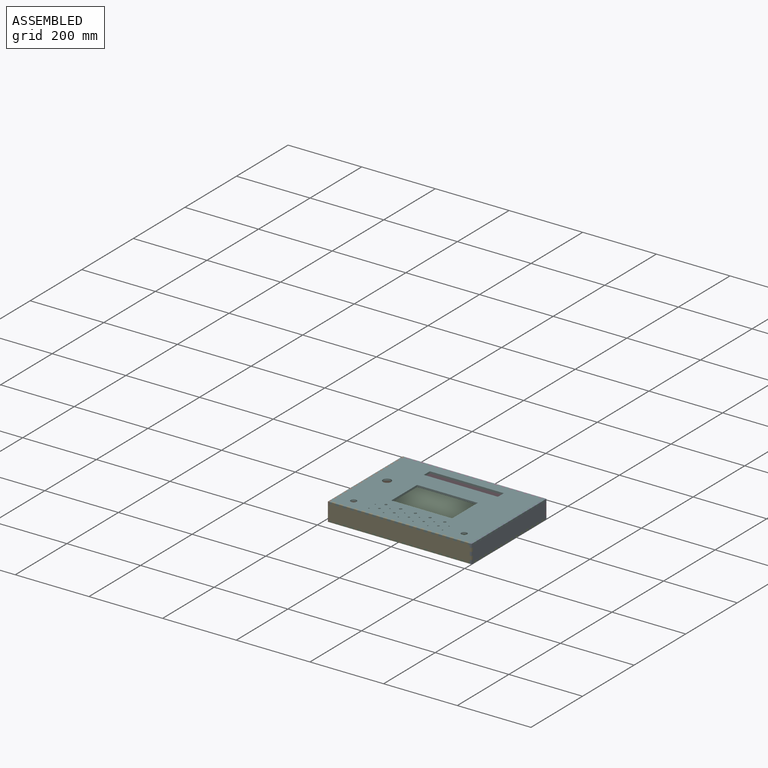
[diagram: assembled view]
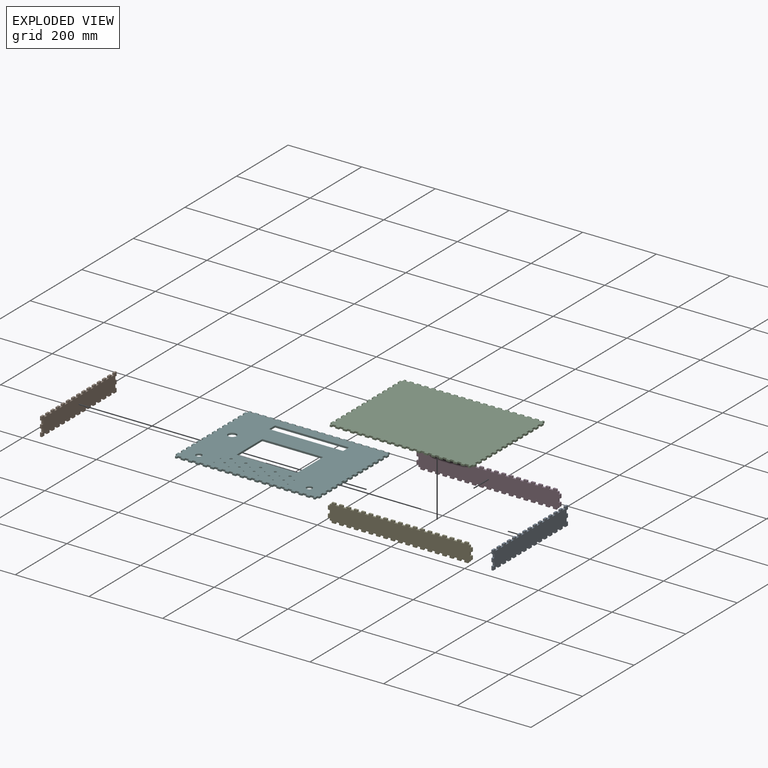
[diagram: exploded view]
GUIDED TOUR — MATED ASSEMBLY (Onshape document 58454a1c1316291098a44c90, AutoMate assembly 58454a1c1316291098a44c90_6ab6e86a1b761d5ac9e8e9ca_1e083ecb8c683d92ed4c0524_default)

This assembly has 6 components, labeled P0..P5 below (a component is one placed occurrence of a part; the same part can appear more than once), held together by 5 mates. A mate is a constraint between two components; its type names the relative motion it leaves free:
  FASTENED — locks the two components together rigidly (no relative motion).
Axis/direction vectors are unit vectors and 'through' points are millimeter coordinates, both in the assembly's world frame.

MATES
  1. FASTENED "Fastened 1": P1 <-> P2, direction (0.000, -1.000, 0.000) through (-176.02, -186.02, -19.27) mm
  2. FASTENED "Fastened 6": P3 <-> P1, direction (-1.000, 0.000, 0.000) through (-181.02, 98.98, 10.73) mm
  3. FASTENED "Fastened 5": P4 <-> P0, direction (1.000, 0.000, 0.000) through (208.98, -181.02, 10.73) mm
  4. FASTENED "Fastened 2": P0 <-> P2, direction (0.000, -1.000, 0.000) through (203.98, -186.02, -19.27) mm
  5. FASTENED "Fastened 3": P0 <-> P5, direction (1.000, 0.000, 0.000) through (208.98, -176.02, 25.73) mm

ASSEMBLY ORDER
  1. P4 — the base component [order verified]
  2. P0 [order verified]
  3. P5 [order verified]
  4. P3 [order verified]
  5. P2 [order verified]
  6. P1 [order verified]
Order-tag legend:
  [order verified] — this step's position reverses a verified removal order: the component was checked to insert without passing through the ones already placed.

Of the 6 components, 6 carry the full construction recipe — the FeatureScript program that regenerates the part's solid from scratch; the rest are supplied as boundary geometry only.
Each toured component is shown spotlighted twice — in the assembled view, then in the exploded view, where a leader line traces a displaced component back to its assembled socket (saturated green if recipe-attached, orange if geometry-only; every other component desaturated gray) — followed by its recipe or geometry summary and the mates that hold it.
NOTE — document 2 of 2 of this assembly tour. The two overview renders and the header above are repeated from document 1; the component sections below continue where the previous document stopped.
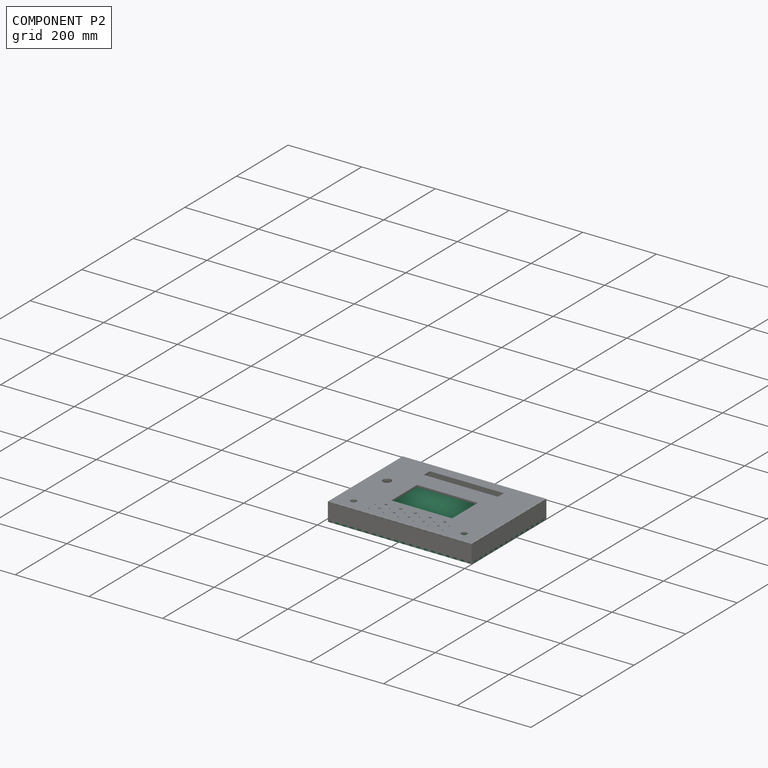
[diagram: component P2 — assembled]
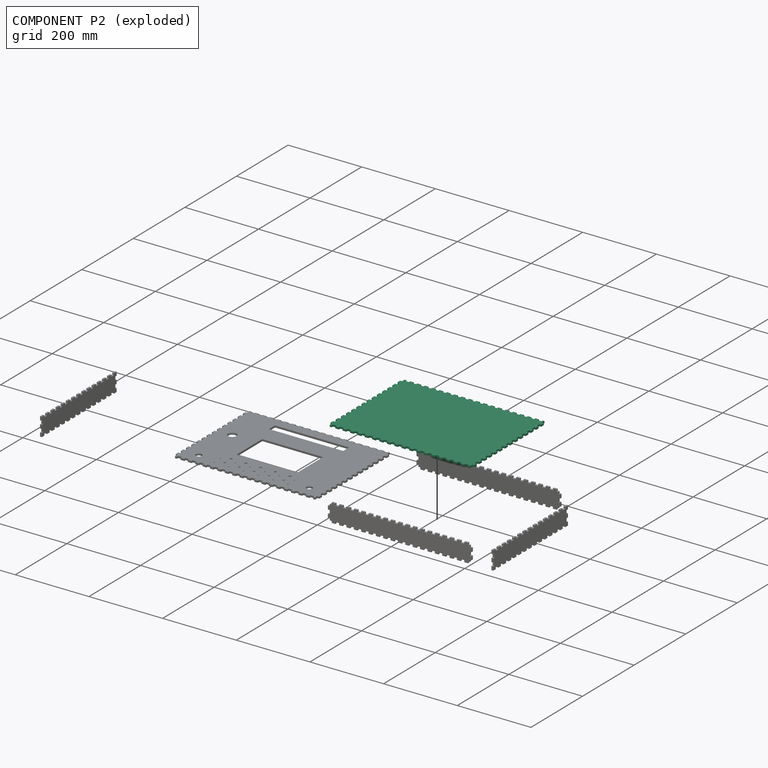
[diagram: component P2 — exploded]
COMPONENT P2 — recipe-attached (CADFS 00366136, mesh-verified: the recipe's output STEP matches this component's geometry to below the mesh-comparison resolution (tessellation chordal tolerance ~0.729 mm)).
Held by: FASTENED mate "Fastened 1" to P1; FASTENED mate "Fastened 2" to P0.
Construction recipe (FeatureScript — the CAD program that rebuilds this solid; sketch coordinates are in the units given by the * unit suffixes, e.g. mm):

FeatureScript 1511;
import(path : "onshape/std/geometry.fs", version : "1511.0");
import(path : "onshape/std/common.fs", version : "1511.0");
const mm = millimeter;
const VERTEX = EntityType.VERTEX;
const EDGE = EntityType.EDGE;
const FACE = EntityType.FACE;
const BODY = EntityType.BODY;
function v(x, y){return vector(x, y);}
function OD(order){return orderDisambiguation(order);}
function OSD(set){return originalSetDisambiguation(set);}
function TD(topology){return topologyDisambiguation(topology);}
function TDD(query){return trueDependencyDisambiguation(query);}
function sQuery(a, b, c) {return sketchEntityQuery(a, b, c);}

annotation { "Feature Type Name" : "Feature", "Feature Type Description" : "" }
export const myFeature = defineFeature(function(context is Context, id is Id, definition is map)
    precondition{}
    {
        {
            var Q0;
            Q0=qCreatedBy(makeId("Top.planeOp"),FACE);
            var sketch = newSketch(context, id + "F0", { "sketchPlane" : qUnion([Q0])});
            skLineSegment(sketch, "E0", {"start": v(-189.05, -126.62) * mm, "end": v(-184.05, -126.62) * mm});
            skLineSegment(sketch, "E1", {"start": v(-184.05, -126.62) * mm, "end": v(-184.05, -136.62) * mm});
            skLineSegment(sketch, "E2", {"start": v(-184.05, -136.62) * mm, "end": v(-179.05, -136.62) * mm});
            skLineSegment(sketch, "E3", {"start": v(-179.05, -136.62) * mm, "end": v(-179.05, -131.62) * mm});
            skLineSegment(sketch, "E4", {"start": v(-179.05, -131.62) * mm, "end": v(-169.05, -131.62) * mm});
            skLineSegment(sketch, "E5", {"start": v(-169.05, -131.62) * mm, "end": v(-169.05, -136.62) * mm});
            skLineSegment(sketch, "E6", {"start": v(-169.05, -136.62) * mm, "end": v(-159.05, -136.62) * mm});
            skLineSegment(sketch, "E7", {"start": v(-159.05, -136.62) * mm, "end": v(-159.05, -131.62) * mm});
            skLineSegment(sketch, "E8", {"start": v(-159.05, -131.62) * mm, "end": v(-149.05, -131.62) * mm});
            skLineSegment(sketch, "E9", {"start": v(-149.05, -131.62) * mm, "end": v(-149.05, -136.62) * mm});
            skLineSegment(sketch, "E10.1.0.0", {"start": v(-149.05, -136.62) * mm, "end": v(-139.05, -136.62) * mm});
            skLineSegment(sketch, "E10.1.0.1", {"start": v(-139.05, -136.62) * mm, "end": v(-139.05, -131.62) * mm});
            skLineSegment(sketch, "E10.1.0.2", {"start": v(-139.05, -131.62) * mm, "end": v(-129.05, -131.62) * mm});
            skLineSegment(sketch, "E10.1.0.3", {"start": v(-129.05, -131.62) * mm, "end": v(-129.05, -136.62) * mm});
            skLineSegment(sketch, "E10.2.0.0", {"start": v(-129.05, -136.62) * mm, "end": v(-119.05, -136.62) * mm});
            skLineSegment(sketch, "E10.2.0.1", {"start": v(-119.05, -136.62) * mm, "end": v(-119.05, -131.62) * mm});
            skLineSegment(sketch, "E10.2.0.2", {"start": v(-119.05, -131.62) * mm, "end": v(-109.05, -131.62) * mm});
            skLineSegment(sketch, "E10.2.0.3", {"start": v(-109.05, -131.62) * mm, "end": v(-109.05, -136.62) * mm});
            skLineSegment(sketch, "E10.3.0.0", {"start": v(-109.05, -136.62) * mm, "end": v(-99.05, -136.62) * mm});
            skLineSegment(sketch, "E10.3.0.1", {"start": v(-99.05, -136.62) * mm, "end": v(-99.05, -131.62) * mm});
            skLineSegment(sketch, "E10.3.0.2", {"start": v(-99.05, -131.62) * mm, "end": v(-89.05, -131.62) * mm});
            skLineSegment(sketch, "E10.3.0.3", {"start": v(-89.05, -131.62) * mm, "end": v(-89.05, -136.62) * mm});
            skLineSegment(sketch, "E10.4.0.0", {"start": v(-89.05, -136.62) * mm, "end": v(-79.05, -136.62) * mm});
            skLineSegment(sketch, "E10.4.0.1", {"start": v(-79.05, -136.62) * mm, "end": v(-79.05, -131.62) * mm});
            skLineSegment(sketch, "E10.4.0.2", {"start": v(-79.05, -131.62) * mm, "end": v(-69.05, -131.62) * mm});
            skLineSegment(sketch, "E10.4.0.3", {"start": v(-69.05, -131.62) * mm, "end": v(-69.05, -136.62) * mm});
            skLineSegment(sketch, "E10.5.0.0", {"start": v(-69.05, -136.62) * mm, "end": v(-59.05, -136.62) * mm});
            skLineSegment(sketch, "E10.5.0.1", {"start": v(-59.05, -136.62) * mm, "end": v(-59.05, -131.62) * mm});
            skLineSegment(sketch, "E10.5.0.2", {"start": v(-59.05, -131.62) * mm, "end": v(-49.05, -131.62) * mm});
            skLineSegment(sketch, "E10.5.0.3", {"start": v(-49.05, -131.62) * mm, "end": v(-49.05, -136.62) * mm});
            skLineSegment(sketch, "E10.6.0.0", {"start": v(-49.05, -136.62) * mm, "end": v(-39.05, -136.62) * mm});
            skLineSegment(sketch, "E10.6.0.1", {"start": v(-39.05, -136.62) * mm, "end": v(-39.05, -131.62) * mm});
            skLineSegment(sketch, "E10.6.0.2", {"start": v(-39.05, -131.62) * mm, "end": v(-29.05, -131.62) * mm});
            skLineSegment(sketch, "E10.6.0.3", {"start": v(-29.05, -131.62) * mm, "end": v(-29.05, -136.62) * mm});
            skLineSegment(sketch, "E10.7.0.0", {"start": v(-29.05, -136.62) * mm, "end": v(-19.05, -136.62) * mm});
            skLineSegment(sketch, "E10.7.0.1", {"start": v(-19.05, -136.62) * mm, "end": v(-19.05, -131.62) * mm});
            skLineSegment(sketch, "E10.7.0.2", {"start": v(-19.05, -131.62) * mm, "end": v(-9.05, -131.62) * mm});
            skLineSegment(sketch, "E10.7.0.3", {"start": v(-9.05, -131.62) * mm, "end": v(-9.05, -136.62) * mm});
            skLineSegment(sketch, "E10.8.0.0", {"start": v(-9.05, -136.62) * mm, "end": v(0.95, -136.62) * mm});
            skLineSegment(sketch, "E10.8.0.1", {"start": v(0.95, -136.62) * mm, "end": v(0.95, -131.62) * mm});
            skLineSegment(sketch, "E10.8.0.2", {"start": v(0.95, -131.62) * mm, "end": v(10.95, -131.62) * mm});
            skLineSegment(sketch, "E10.8.0.3", {"start": v(10.95, -131.62) * mm, "end": v(10.95, -136.62) * mm});
            skLineSegment(sketch, "E10.9.0.0", {"start": v(10.95, -136.62) * mm, "end": v(20.95, -136.62) * mm});
            skLineSegment(sketch, "E10.9.0.1", {"start": v(20.95, -136.62) * mm, "end": v(20.95, -131.62) * mm});
            skLineSegment(sketch, "E10.9.0.2", {"start": v(20.95, -131.62) * mm, "end": v(30.95, -131.62) * mm});
            skLineSegment(sketch, "E10.9.0.3", {"start": v(30.95, -131.62) * mm, "end": v(30.95, -136.62) * mm});
            skLineSegment(sketch, "E10.10.0.0", {"start": v(30.95, -136.62) * mm, "end": v(40.95, -136.62) * mm});
            skLineSegment(sketch, "E10.10.0.1", {"start": v(40.95, -136.62) * mm, "end": v(40.95, -131.62) * mm});
            skLineSegment(sketch, "E10.10.0.2", {"start": v(40.95, -131.62) * mm, "end": v(50.95, -131.62) * mm});
            skLineSegment(sketch, "E10.10.0.3", {"start": v(50.95, -131.62) * mm, "end": v(50.95, -136.62) * mm});
            skLineSegment(sketch, "E10.11.0.0", {"start": v(50.95, -136.62) * mm, "end": v(60.95, -136.62) * mm});
            skLineSegment(sketch, "E10.11.0.1", {"start": v(60.95, -136.62) * mm, "end": v(60.95, -131.62) * mm});
            skLineSegment(sketch, "E10.11.0.2", {"start": v(60.95, -131.62) * mm, "end": v(70.95, -131.62) * mm});
            skLineSegment(sketch, "E10.11.0.3", {"start": v(70.95, -131.62) * mm, "end": v(70.95, -136.62) * mm});
            skLineSegment(sketch, "E10.12.0.0", {"start": v(70.95, -136.62) * mm, "end": v(80.95, -136.62) * mm});
            skLineSegment(sketch, "E10.12.0.1", {"start": v(80.95, -136.62) * mm, "end": v(80.95, -131.62) * mm});
            skLineSegment(sketch, "E10.12.0.2", {"start": v(80.95, -131.62) * mm, "end": v(90.95, -131.62) * mm});
            skLineSegment(sketch, "E10.12.0.3", {"start": v(90.95, -131.62) * mm, "end": v(90.95, -136.62) * mm});
            skLineSegment(sketch, "E10.13.0.0", {"start": v(90.95, -136.62) * mm, "end": v(100.95, -136.62) * mm});
            skLineSegment(sketch, "E10.13.0.1", {"start": v(100.95, -136.62) * mm, "end": v(100.95, -131.62) * mm});
            skLineSegment(sketch, "E10.13.0.2", {"start": v(100.95, -131.62) * mm, "end": v(110.95, -131.62) * mm});
            skLineSegment(sketch, "E10.13.0.3", {"start": v(110.95, -131.62) * mm, "end": v(110.95, -136.62) * mm});
            skLineSegment(sketch, "E10.14.0.0", {"start": v(110.95, -136.62) * mm, "end": v(120.95, -136.62) * mm});
            skLineSegment(sketch, "E10.14.0.1", {"start": v(120.95, -136.62) * mm, "end": v(120.95, -131.62) * mm});
            skLineSegment(sketch, "E10.14.0.2", {"start": v(120.95, -131.62) * mm, "end": v(130.95, -131.62) * mm});
            skLineSegment(sketch, "E10.14.0.3", {"start": v(130.95, -131.62) * mm, "end": v(130.95, -136.62) * mm});
            skLineSegment(sketch, "E10.15.0.0", {"start": v(130.95, -136.62) * mm, "end": v(140.95, -136.62) * mm});
            skLineSegment(sketch, "E10.15.0.1", {"start": v(140.95, -136.62) * mm, "end": v(140.95, -131.62) * mm});
            skLineSegment(sketch, "E10.15.0.2", {"start": v(140.95, -131.62) * mm, "end": v(150.95, -131.62) * mm});
            skLineSegment(sketch, "E10.15.0.3", {"start": v(150.95, -131.62) * mm, "end": v(150.95, -136.62) * mm});
            skLineSegment(sketch, "E10.16.0.0", {"start": v(150.95, -136.62) * mm, "end": v(160.95, -136.62) * mm});
            skLineSegment(sketch, "E10.16.0.1", {"start": v(160.95, -136.62) * mm, "end": v(160.95, -131.62) * mm});
            skLineSegment(sketch, "E10.16.0.2", {"start": v(160.95, -131.62) * mm, "end": v(170.95, -131.62) * mm});
            skLineSegment(sketch, "E10.16.0.3", {"start": v(170.95, -131.62) * mm, "end": v(170.95, -136.62) * mm});
            skLineSegment(sketch, "E10.17.0.0", {"start": v(170.95, -136.62) * mm, "end": v(180.95, -136.62) * mm});
            skLineSegment(sketch, "E10.17.0.1", {"start": v(180.95, -136.62) * mm, "end": v(180.95, -131.62) * mm});
            skLineSegment(sketch, "E10.17.0.2", {"start": v(180.95, -131.62) * mm, "end": v(190.95, -131.62) * mm});
            skLineSegment(sketch, "E10.17.0.3", {"start": v(190.95, -131.62) * mm, "end": v(190.95, -136.62) * mm});
            skLineSegment(sketch, "E10.direction1", {"start": v(-169.05, -136.62) * mm, "end": v(-149.05, -136.62) * mm, "construction": true});
            skLineSegment(sketch, "E11", {"start": v(190.95, -136.62) * mm, "end": v(195.95, -136.62) * mm});
            skLineSegment(sketch, "E12", {"start": v(195.95, -136.62) * mm, "end": v(195.95, -126.62) * mm});
            skLineSegment(sketch, "E13", {"start": v(195.95, -126.62) * mm, "end": v(200.95, -126.62) * mm});
            skLineSegment(sketch, "E14", {"start": v(200.95, 143.38) * mm, "end": v(195.95, 143.38) * mm});
            skLineSegment(sketch, "E15", {"start": v(195.95, 143.38) * mm, "end": v(195.95, 153.38) * mm});
            skLineSegment(sketch, "E16", {"start": v(195.95, 153.38) * mm, "end": v(190.95, 153.38) * mm});
            skLineSegment(sketch, "E17", {"start": v(190.95, 153.38) * mm, "end": v(190.95, 148.38) * mm});
            skLineSegment(sketch, "E18", {"start": v(190.95, 148.38) * mm, "end": v(180.95, 148.38) * mm});
            skLineSegment(sketch, "E19", {"start": v(180.95, 148.38) * mm, "end": v(180.95, 153.38) * mm});
            skLineSegment(sketch, "E20", {"start": v(180.95, 153.38) * mm, "end": v(170.95, 153.38) * mm});
            skLineSegment(sketch, "E21", {"start": v(170.95, 153.38) * mm, "end": v(170.95, 148.38) * mm});
            skLineSegment(sketch, "E22", {"start": v(170.95, 148.38) * mm, "end": v(160.95, 148.38) * mm});
            skLineSegment(sketch, "E23", {"start": v(160.95, 148.38) * mm, "end": v(160.95, 153.38) * mm});
            skLineSegment(sketch, "E24.1.0.0", {"start": v(160.95, 153.38) * mm, "end": v(150.95, 153.38) * mm});
            skLineSegment(sketch, "E24.1.0.1", {"start": v(150.95, 153.38) * mm, "end": v(150.95, 148.38) * mm});
            skLineSegment(sketch, "E24.1.0.2", {"start": v(150.95, 148.38) * mm, "end": v(140.95, 148.38) * mm});
            skLineSegment(sketch, "E24.1.0.3", {"start": v(140.95, 148.38) * mm, "end": v(140.95, 153.38) * mm});
            skLineSegment(sketch, "E24.2.0.0", {"start": v(140.95, 153.38) * mm, "end": v(130.95, 153.38) * mm});
            skLineSegment(sketch, "E24.2.0.1", {"start": v(130.95, 153.38) * mm, "end": v(130.95, 148.38) * mm});
            skLineSegment(sketch, "E24.2.0.2", {"start": v(130.95, 148.38) * mm, "end": v(120.95, 148.38) * mm});
            skLineSegment(sketch, "E24.2.0.3", {"start": v(120.95, 148.38) * mm, "end": v(120.95, 153.38) * mm});
            skLineSegment(sketch, "E24.3.0.0", {"start": v(120.95, 153.38) * mm, "end": v(110.95, 153.38) * mm});
            skLineSegment(sketch, "E24.3.0.1", {"start": v(110.95, 153.38) * mm, "end": v(110.95, 148.38) * mm});
            skLineSegment(sketch, "E24.3.0.2", {"start": v(110.95, 148.38) * mm, "end": v(100.95, 148.38) * mm});
            skLineSegment(sketch, "E24.3.0.3", {"start": v(100.95, 148.38) * mm, "end": v(100.95, 153.38) * mm});
            skLineSegment(sketch, "E24.4.0.0", {"start": v(100.95, 153.38) * mm, "end": v(90.95, 153.38) * mm});
            skLineSegment(sketch, "E24.4.0.1", {"start": v(90.95, 153.38) * mm, "end": v(90.95, 148.38) * mm});
            skLineSegment(sketch, "E24.4.0.2", {"start": v(90.95, 148.38) * mm, "end": v(80.95, 148.38) * mm});
            skLineSegment(sketch, "E24.4.0.3", {"start": v(80.95, 148.38) * mm, "end": v(80.95, 153.38) * mm});
            skLineSegment(sketch, "E24.5.0.0", {"start": v(80.95, 153.38) * mm, "end": v(70.95, 153.38) * mm});
            skLineSegment(sketch, "E24.5.0.1", {"start": v(70.95, 153.38) * mm, "end": v(70.95, 148.38) * mm});
            skLineSegment(sketch, "E24.5.0.2", {"start": v(70.95, 148.38) * mm, "end": v(60.95, 148.38) * mm});
            skLineSegment(sketch, "E24.5.0.3", {"start": v(60.95, 148.38) * mm, "end": v(60.95, 153.38) * mm});
            skLineSegment(sketch, "E24.6.0.0", {"start": v(60.95, 153.38) * mm, "end": v(50.95, 153.38) * mm});
            skLineSegment(sketch, "E24.6.0.1", {"start": v(50.95, 153.38) * mm, "end": v(50.95, 148.38) * mm});
            skLineSegment(sketch, "E24.6.0.2", {"start": v(50.95, 148.38) * mm, "end": v(40.95, 148.38) * mm});
            skLineSegment(sketch, "E24.6.0.3", {"start": v(40.95, 148.38) * mm, "end": v(40.95, 153.38) * mm});
            skLineSegment(sketch, "E24.7.0.0", {"start": v(40.95, 153.38) * mm, "end": v(30.95, 153.38) * mm});
            skLineSegment(sketch, "E24.7.0.1", {"start": v(30.95, 153.38) * mm, "end": v(30.95, 148.38) * mm});
            skLineSegment(sketch, "E24.7.0.2", {"start": v(30.95, 148.38) * mm, "end": v(20.95, 148.38) * mm});
            skLineSegment(sketch, "E24.7.0.3", {"start": v(20.95, 148.38) * mm, "end": v(20.95, 153.38) * mm});
            skLineSegment(sketch, "E24.8.0.0", {"start": v(20.95, 153.38) * mm, "end": v(10.95, 153.38) * mm});
            skLineSegment(sketch, "E24.8.0.1", {"start": v(10.95, 153.38) * mm, "end": v(10.95, 148.38) * mm});
            skLineSegment(sketch, "E24.8.0.2", {"start": v(10.95, 148.38) * mm, "end": v(0.95, 148.38) * mm});
            skLineSegment(sketch, "E24.8.0.3", {"start": v(0.95, 148.38) * mm, "end": v(0.95, 153.38) * mm});
            skLineSegment(sketch, "E24.9.0.0", {"start": v(0.95, 153.38) * mm, "end": v(-9.05, 153.38) * mm});
            skLineSegment(sketch, "E24.9.0.1", {"start": v(-9.05, 153.38) * mm, "end": v(-9.05, 148.38) * mm});
            skLineSegment(sketch, "E24.9.0.2", {"start": v(-9.05, 148.38) * mm, "end": v(-19.05, 148.38) * mm});
            skLineSegment(sketch, "E24.9.0.3", {"start": v(-19.05, 148.38) * mm, "end": v(-19.05, 153.38) * mm});
            skLineSegment(sketch, "E24.10.0.0", {"start": v(-19.05, 153.38) * mm, "end": v(-29.05, 153.38) * mm});
            skLineSegment(sketch, "E24.10.0.1", {"start": v(-29.05, 153.38) * mm, "end": v(-29.05, 148.38) * mm});
            skLineSegment(sketch, "E24.10.0.2", {"start": v(-29.05, 148.38) * mm, "end": v(-39.05, 148.38) * mm});
            skLineSegment(sketch, "E24.10.0.3", {"start": v(-39.05, 148.38) * mm, "end": v(-39.05, 153.38) * mm});
            skLineSegment(sketch, "E24.11.0.0", {"start": v(-39.05, 153.38) * mm, "end": v(-49.05, 153.38) * mm});
            skLineSegment(sketch, "E24.11.0.1", {"start": v(-49.05, 153.38) * mm, "end": v(-49.05, 148.38) * mm});
            skLineSegment(sketch, "E24.11.0.2", {"start": v(-49.05, 148.38) * mm, "end": v(-59.05, 148.38) * mm});
            skLineSegment(sketch, "E24.11.0.3", {"start": v(-59.05, 148.38) * mm, "end": v(-59.05, 153.38) * mm});
            skLineSegment(sketch, "E24.12.0.0", {"start": v(-59.05, 153.38) * mm, "end": v(-69.05, 153.38) * mm});
            skLineSegment(sketch, "E24.12.0.1", {"start": v(-69.05, 153.38) * mm, "end": v(-69.05, 148.38) * mm});
            skLineSegment(sketch, "E24.12.0.2", {"start": v(-69.05, 148.38) * mm, "end": v(-79.05, 148.38) * mm});
            skLineSegment(sketch, "E24.12.0.3", {"start": v(-79.05, 148.38) * mm, "end": v(-79.05, 153.38) * mm});
            skLineSegment(sketch, "E24.13.0.0", {"start": v(-79.05, 153.38) * mm, "end": v(-89.05, 153.38) * mm});
            skLineSegment(sketch, "E24.13.0.1", {"start": v(-89.05, 153.38) * mm, "end": v(-89.05, 148.38) * mm});
            skLineSegment(sketch, "E24.13.0.2", {"start": v(-89.05, 148.38) * mm, "end": v(-99.05, 148.38) * mm});
            skLineSegment(sketch, "E24.13.0.3", {"start": v(-99.05, 148.38) * mm, "end": v(-99.05, 153.38) * mm});
            skLineSegment(sketch, "E24.14.0.0", {"start": v(-99.05, 153.38) * mm, "end": v(-109.05, 153.38) * mm});
            skLineSegment(sketch, "E24.14.0.1", {"start": v(-109.05, 153.38) * mm, "end": v(-109.05, 148.38) * mm});
            skLineSegment(sketch, "E24.14.0.2", {"start": v(-109.05, 148.38) * mm, "end": v(-119.05, 148.38) * mm});
            skLineSegment(sketch, "E24.14.0.3", {"start": v(-119.05, 148.38) * mm, "end": v(-119.05, 153.38) * mm});
            skLineSegment(sketch, "E24.15.0.0", {"start": v(-119.05, 153.38) * mm, "end": v(-129.05, 153.38) * mm});
            skLineSegment(sketch, "E24.15.0.1", {"start": v(-129.05, 153.38) * mm, "end": v(-129.05, 148.38) * mm});
            skLineSegment(sketch, "E24.15.0.2", {"start": v(-129.05, 148.38) * mm, "end": v(-139.05, 148.38) * mm});
            skLineSegment(sketch, "E24.15.0.3", {"start": v(-139.05, 148.38) * mm, "end": v(-139.05, 153.38) * mm});
            skLineSegment(sketch, "E24.16.0.0", {"start": v(-139.05, 153.38) * mm, "end": v(-149.05, 153.38) * mm});
            skLineSegment(sketch, "E24.16.0.1", {"start": v(-149.05, 153.38) * mm, "end": v(-149.05, 148.38) * mm});
            skLineSegment(sketch, "E24.16.0.2", {"start": v(-149.05, 148.38) * mm, "end": v(-159.05, 148.38) * mm});
            skLineSegment(sketch, "E24.16.0.3", {"start": v(-159.05, 148.38) * mm, "end": v(-159.05, 153.38) * mm});
            skLineSegment(sketch, "E24.17.0.0", {"start": v(-159.05, 153.38) * mm, "end": v(-169.05, 153.38) * mm});
            skLineSegment(sketch, "E24.17.0.1", {"start": v(-169.05, 153.38) * mm, "end": v(-169.05, 148.38) * mm});
            skLineSegment(sketch, "E24.17.0.2", {"start": v(-169.05, 148.38) * mm, "end": v(-179.05, 148.38) * mm});
            skLineSegment(sketch, "E24.17.0.3", {"start": v(-179.05, 148.38) * mm, "end": v(-179.05, 153.38) * mm});
            skLineSegment(sketch, "E24.direction1", {"start": v(180.95, 153.38) * mm, "end": v(160.95, 153.38) * mm, "construction": true});
            skLineSegment(sketch, "E25", {"start": v(-179.05, 153.38) * mm, "end": v(-184.05, 153.38) * mm});
            skLineSegment(sketch, "E26", {"start": v(-184.05, 153.38) * mm, "end": v(-184.05, 143.38) * mm});
            skLineSegment(sketch, "E27", {"start": v(-184.05, 143.38) * mm, "end": v(-189.05, 143.38) * mm});
            skLineSegment(sketch, "E28", {"start": v(-189.05, 143.38) * mm, "end": v(-189.05, 133.38) * mm});
            skLineSegment(sketch, "E29", {"start": v(-189.05, 133.38) * mm, "end": v(-184.05, 133.38) * mm});
            skLineSegment(sketch, "E30", {"start": v(-184.05, 133.38) * mm, "end": v(-184.05, 123.38) * mm});
            skLineSegment(sketch, "E31.1.0.0", {"start": v(-184.05, 123.38) * mm, "end": v(-189.05, 123.38) * mm});
            skLineSegment(sketch, "E31.1.0.1", {"start": v(-189.05, 123.38) * mm, "end": v(-189.05, 113.38) * mm});
            skLineSegment(sketch, "E31.1.0.2", {"start": v(-189.05, 113.38) * mm, "end": v(-184.05, 113.38) * mm});
            skLineSegment(sketch, "E31.1.0.3", {"start": v(-184.05, 113.38) * mm, "end": v(-184.05, 103.38) * mm});
            skLineSegment(sketch, "E31.2.0.0", {"start": v(-184.05, 103.38) * mm, "end": v(-189.05, 103.38) * mm});
            skLineSegment(sketch, "E31.2.0.1", {"start": v(-189.05, 103.38) * mm, "end": v(-189.05, 93.38) * mm});
            skLineSegment(sketch, "E31.2.0.2", {"start": v(-189.05, 93.38) * mm, "end": v(-184.05, 93.38) * mm});
            skLineSegment(sketch, "E31.2.0.3", {"start": v(-184.05, 93.38) * mm, "end": v(-184.05, 83.38) * mm});
            skLineSegment(sketch, "E31.3.0.0", {"start": v(-184.05, 83.38) * mm, "end": v(-189.05, 83.38) * mm});
            skLineSegment(sketch, "E31.3.0.1", {"start": v(-189.05, 83.38) * mm, "end": v(-189.05, 73.38) * mm});
            skLineSegment(sketch, "E31.3.0.2", {"start": v(-189.05, 73.38) * mm, "end": v(-184.05, 73.38) * mm});
            skLineSegment(sketch, "E31.3.0.3", {"start": v(-184.05, 73.38) * mm, "end": v(-184.05, 63.38) * mm});
            skLineSegment(sketch, "E31.4.0.0", {"start": v(-184.05, 63.38) * mm, "end": v(-189.05, 63.38) * mm});
            skLineSegment(sketch, "E31.4.0.1", {"start": v(-189.05, 63.38) * mm, "end": v(-189.05, 53.38) * mm});
            skLineSegment(sketch, "E31.4.0.2", {"start": v(-189.05, 53.38) * mm, "end": v(-184.05, 53.38) * mm});
            skLineSegment(sketch, "E31.4.0.3", {"start": v(-184.05, 53.38) * mm, "end": v(-184.05, 43.38) * mm});
            skLineSegment(sketch, "E31.5.0.0", {"start": v(-184.05, 43.38) * mm, "end": v(-189.05, 43.38) * mm});
            skLineSegment(sketch, "E31.5.0.1", {"start": v(-189.05, 43.38) * mm, "end": v(-189.05, 33.38) * mm});
            skLineSegment(sketch, "E31.5.0.2", {"start": v(-189.05, 33.38) * mm, "end": v(-184.05, 33.38) * mm});
            skLineSegment(sketch, "E31.5.0.3", {"start": v(-184.05, 33.38) * mm, "end": v(-184.05, 23.38) * mm});
            skLineSegment(sketch, "E31.6.0.0", {"start": v(-184.05, 23.38) * mm, "end": v(-189.05, 23.38) * mm});
            skLineSegment(sketch, "E31.6.0.1", {"start": v(-189.05, 23.38) * mm, "end": v(-189.05, 13.38) * mm});
            skLineSegment(sketch, "E31.6.0.2", {"start": v(-189.05, 13.38) * mm, "end": v(-184.05, 13.38) * mm});
            skLineSegment(sketch, "E31.6.0.3", {"start": v(-184.05, 13.38) * mm, "end": v(-184.05, 3.38) * mm});
            skLineSegment(sketch, "E31.7.0.0", {"start": v(-184.05, 3.38) * mm, "end": v(-189.05, 3.38) * mm});
            skLineSegment(sketch, "E31.7.0.1", {"start": v(-189.05, 3.38) * mm, "end": v(-189.05, -6.62) * mm});
            skLineSegment(sketch, "E31.7.0.2", {"start": v(-189.05, -6.62) * mm, "end": v(-184.05, -6.62) * mm});
            skLineSegment(sketch, "E31.7.0.3", {"start": v(-184.05, -6.62) * mm, "end": v(-184.05, -16.62) * mm});
            skLineSegment(sketch, "E31.8.0.0", {"start": v(-184.05, -16.62) * mm, "end": v(-189.05, -16.62) * mm});
            skLineSegment(sketch, "E31.8.0.1", {"start": v(-189.05, -16.62) * mm, "end": v(-189.05, -26.62) * mm});
            skLineSegment(sketch, "E31.8.0.2", {"start": v(-189.05, -26.62) * mm, "end": v(-184.05, -26.62) * mm});
            skLineSegment(sketch, "E31.8.0.3", {"start": v(-184.05, -26.62) * mm, "end": v(-184.05, -36.62) * mm});
            skLineSegment(sketch, "E31.9.0.0", {"start": v(-184.05, -36.62) * mm, "end": v(-189.05, -36.62) * mm});
            skLineSegment(sketch, "E31.9.0.1", {"start": v(-189.05, -36.62) * mm, "end": v(-189.05, -46.62) * mm});
            skLineSegment(sketch, "E31.9.0.2", {"start": v(-189.05, -46.62) * mm, "end": v(-184.05, -46.62) * mm});
            skLineSegment(sketch, "E31.9.0.3", {"start": v(-184.05, -46.62) * mm, "end": v(-184.05, -56.62) * mm});
            skLineSegment(sketch, "E31.10.0.0", {"start": v(-184.05, -56.62) * mm, "end": v(-189.05, -56.62) * mm});
            skLineSegment(sketch, "E31.10.0.1", {"start": v(-189.05, -56.62) * mm, "end": v(-189.05, -66.62) * mm});
            skLineSegment(sketch, "E31.10.0.2", {"start": v(-189.05, -66.62) * mm, "end": v(-184.05, -66.62) * mm});
            skLineSegment(sketch, "E31.10.0.3", {"start": v(-184.05, -66.62) * mm, "end": v(-184.05, -76.62) * mm});
            skLineSegment(sketch, "E31.11.0.0", {"start": v(-184.05, -76.62) * mm, "end": v(-189.05, -76.62) * mm});
            skLineSegment(sketch, "E31.11.0.1", {"start": v(-189.05, -76.62) * mm, "end": v(-189.05, -86.62) * mm});
            skLineSegment(sketch, "E31.11.0.2", {"start": v(-189.05, -86.62) * mm, "end": v(-184.05, -86.62) * mm});
            skLineSegment(sketch, "E31.11.0.3", {"start": v(-184.05, -86.62) * mm, "end": v(-184.05, -96.62) * mm});
            skLineSegment(sketch, "E31.12.0.0", {"start": v(-184.05, -96.62) * mm, "end": v(-189.05, -96.62) * mm});
            skLineSegment(sketch, "E31.12.0.1", {"start": v(-189.05, -96.62) * mm, "end": v(-189.05, -106.62) * mm});
            skLineSegment(sketch, "E31.12.0.2", {"start": v(-189.05, -106.62) * mm, "end": v(-184.05, -106.62) * mm});
            skLineSegment(sketch, "E31.12.0.3", {"start": v(-184.05, -106.62) * mm, "end": v(-184.05, -116.62) * mm});
            skLineSegment(sketch, "E31.13.0.0", {"start": v(-184.05, -116.62) * mm, "end": v(-189.05, -116.62) * mm});
            skLineSegment(sketch, "E31.13.0.1", {"start": v(-189.05, -116.62) * mm, "end": v(-189.05, -126.62) * mm});
            skLineSegment(sketch, "E32", {"start": v(200.95, -126.62) * mm, "end": v(200.95, -116.62) * mm});
            skLineSegment(sketch, "E33", {"start": v(200.95, -116.62) * mm, "end": v(195.95, -116.62) * mm});
            skLineSegment(sketch, "E34", {"start": v(195.95, -116.62) * mm, "end": v(195.95, -106.62) * mm});
            skLineSegment(sketch, "E35.1.0.0", {"start": v(195.95, -106.62) * mm, "end": v(200.95, -106.62) * mm});
            skLineSegment(sketch, "E35.1.0.1", {"start": v(200.95, -106.62) * mm, "end": v(200.95, -96.62) * mm});
            skLineSegment(sketch, "E35.1.0.2", {"start": v(200.95, -96.62) * mm, "end": v(195.95, -96.62) * mm});
            skLineSegment(sketch, "E35.1.0.3", {"start": v(195.95, -96.62) * mm, "end": v(195.95, -86.62) * mm});
            skLineSegment(sketch, "E35.2.0.0", {"start": v(195.95, -86.62) * mm, "end": v(200.95, -86.62) * mm});
            skLineSegment(sketch, "E35.2.0.1", {"start": v(200.95, -86.62) * mm, "end": v(200.95, -76.62) * mm});
            skLineSegment(sketch, "E35.2.0.2", {"start": v(200.95, -76.62) * mm, "end": v(195.95, -76.62) * mm});
            skLineSegment(sketch, "E35.2.0.3", {"start": v(195.95, -76.62) * mm, "end": v(195.95, -66.62) * mm});
            skLineSegment(sketch, "E35.3.0.0", {"start": v(195.95, -66.62) * mm, "end": v(200.95, -66.62) * mm});
            skLineSegment(sketch, "E35.3.0.1", {"start": v(200.95, -66.62) * mm, "end": v(200.95, -56.62) * mm});
            skLineSegment(sketch, "E35.3.0.2", {"start": v(200.95, -56.62) * mm, "end": v(195.95, -56.62) * mm});
            skLineSegment(sketch, "E35.3.0.3", {"start": v(195.95, -56.62) * mm, "end": v(195.95, -46.62) * mm});
            skLineSegment(sketch, "E35.4.0.0", {"start": v(195.95, -46.62) * mm, "end": v(200.95, -46.62) * mm});
            skLineSegment(sketch, "E35.4.0.1", {"start": v(200.95, -46.62) * mm, "end": v(200.95, -36.62) * mm});
            skLineSegment(sketch, "E35.4.0.2", {"start": v(200.95, -36.62) * mm, "end": v(195.95, -36.62) * mm});
            skLineSegment(sketch, "E35.4.0.3", {"start": v(195.95, -36.62) * mm, "end": v(195.95, -26.62) * mm});
            skLineSegment(sketch, "E35.5.0.0", {"start": v(195.95, -26.62) * mm, "end": v(200.95, -26.62) * mm});
            skLineSegment(sketch, "E35.5.0.1", {"start": v(200.95, -26.62) * mm, "end": v(200.95, -16.62) * mm});
            skLineSegment(sketch, "E35.5.0.2", {"start": v(200.95, -16.62) * mm, "end": v(195.95, -16.62) * mm});
            skLineSegment(sketch, "E35.5.0.3", {"start": v(195.95, -16.62) * mm, "end": v(195.95, -6.62) * mm});
            skLineSegment(sketch, "E35.6.0.0", {"start": v(195.95, -6.62) * mm, "end": v(200.95, -6.62) * mm});
            skLineSegment(sketch, "E35.6.0.1", {"start": v(200.95, -6.62) * mm, "end": v(200.95, 3.38) * mm});
            skLineSegment(sketch, "E35.6.0.2", {"start": v(200.95, 3.38) * mm, "end": v(195.95, 3.38) * mm});
            skLineSegment(sketch, "E35.6.0.3", {"start": v(195.95, 3.38) * mm, "end": v(195.95, 13.38) * mm});
            skLineSegment(sketch, "E35.7.0.0", {"start": v(195.95, 13.38) * mm, "end": v(200.95, 13.38) * mm});
            skLineSegment(sketch, "E35.7.0.1", {"start": v(200.95, 13.38) * mm, "end": v(200.95, 23.38) * mm});
            skLineSegment(sketch, "E35.7.0.2", {"start": v(200.95, 23.38) * mm, "end": v(195.95, 23.38) * mm});
            skLineSegment(sketch, "E35.7.0.3", {"start": v(195.95, 23.38) * mm, "end": v(195.95, 33.38) * mm});
            skLineSegment(sketch, "E35.8.0.0", {"start": v(195.95, 33.38) * mm, "end": v(200.95, 33.38) * mm});
            skLineSegment(sketch, "E35.8.0.1", {"start": v(200.95, 33.38) * mm, "end": v(200.95, 43.38) * mm});
            skLineSegment(sketch, "E35.8.0.2", {"start": v(200.95, 43.38) * mm, "end": v(195.95, 43.38) * mm});
            skLineSegment(sketch, "E35.8.0.3", {"start": v(195.95, 43.38) * mm, "end": v(195.95, 53.38) * mm});
            skLineSegment(sketch, "E35.9.0.0", {"start": v(195.95, 53.38) * mm, "end": v(200.95, 53.38) * mm});
            skLineSegment(sketch, "E35.9.0.1", {"start": v(200.95, 53.38) * mm, "end": v(200.95, 63.38) * mm});
            skLineSegment(sketch, "E35.9.0.2", {"start": v(200.95, 63.38) * mm, "end": v(195.95, 63.38) * mm});
            skLineSegment(sketch, "E35.9.0.3", {"start": v(195.95, 63.38) * mm, "end": v(195.95, 73.38) * mm});
            skLineSegment(sketch, "E35.10.0.0", {"start": v(195.95, 73.38) * mm, "end": v(200.95, 73.38) * mm});
            skLineSegment(sketch, "E35.10.0.1", {"start": v(200.95, 73.38) * mm, "end": v(200.95, 83.38) * mm});
            skLineSegment(sketch, "E35.10.0.2", {"start": v(200.95, 83.38) * mm, "end": v(195.95, 83.38) * mm});
            skLineSegment(sketch, "E35.10.0.3", {"start": v(195.95, 83.38) * mm, "end": v(195.95, 93.38) * mm});
            skLineSegment(sketch, "E35.11.0.0", {"start": v(195.95, 93.38) * mm, "end": v(200.95, 93.38) * mm});
            skLineSegment(sketch, "E35.11.0.1", {"start": v(200.95, 93.38) * mm, "end": v(200.95, 103.38) * mm});
            skLineSegment(sketch, "E35.11.0.2", {"start": v(200.95, 103.38) * mm, "end": v(195.95, 103.38) * mm});
            skLineSegment(sketch, "E35.11.0.3", {"start": v(195.95, 103.38) * mm, "end": v(195.95, 113.38) * mm});
            skLineSegment(sketch, "E35.12.0.0", {"start": v(195.95, 113.38) * mm, "end": v(200.95, 113.38) * mm});
            skLineSegment(sketch, "E35.12.0.1", {"start": v(200.95, 113.38) * mm, "end": v(200.95, 123.38) * mm});
            skLineSegment(sketch, "E35.12.0.2", {"start": v(200.95, 123.38) * mm, "end": v(195.95, 123.38) * mm});
            skLineSegment(sketch, "E35.12.0.3", {"start": v(195.95, 123.38) * mm, "end": v(195.95, 133.38) * mm});
            skLineSegment(sketch, "E35.13.0.0", {"start": v(195.95, 133.38) * mm, "end": v(200.95, 133.38) * mm});
            skLineSegment(sketch, "E35.13.0.1", {"start": v(200.95, 133.38) * mm, "end": v(200.95, 143.38) * mm});
            skSolve(sketch);
        }
        {
            var Q0;
            Q0 = qSketchRegion(id + "F0", true);
            extrude(context, id + "F1", {"entities" : qUnion([Q0]), "endBound" : BoundingType.SYMMETRIC, "depth" : 5 * mm});
        }
    });
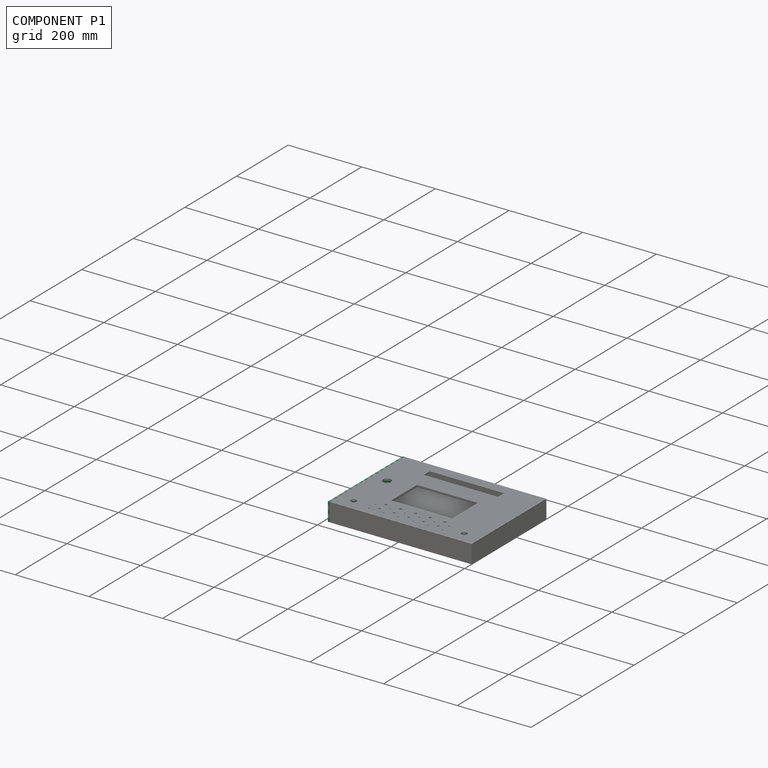
[diagram: component P1 — assembled]
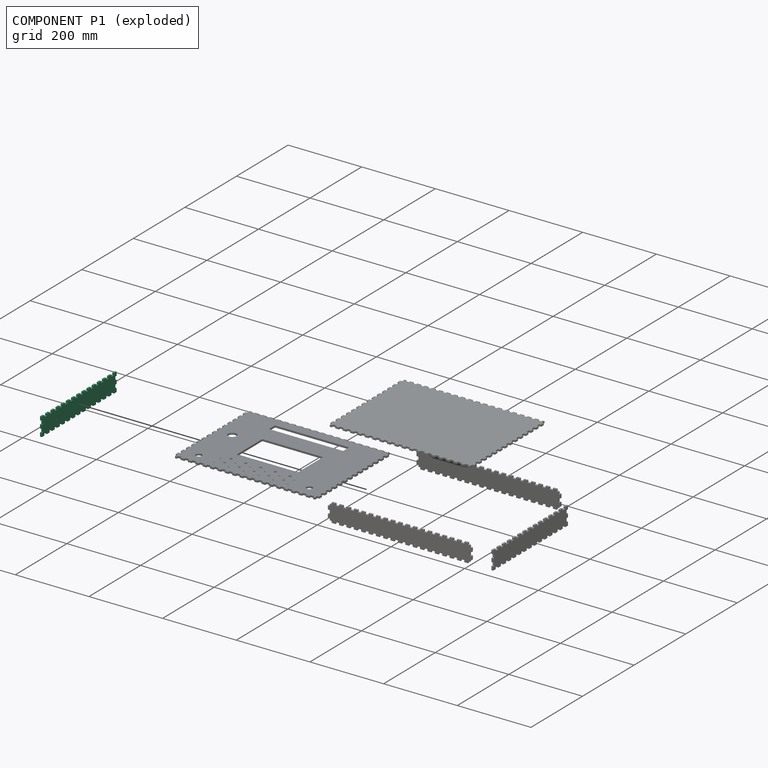
[diagram: component P1 — exploded]
COMPONENT P1 — same part as P0 (CADFS 00366134); its construction recipe is shown at P0.
Held by: FASTENED mate "Fastened 1" to P2; FASTENED mate "Fastened 6" to P3.
PROVENANCE & LICENSES
Assembly (occurrences, transforms, mates, per-part STEP geometry): AutoMate dataset, Zenodo record 7776208, CC0.
Construction recipes: CADFS (HuggingFace VladPyatov/CADFS, CC-BY-4.0, layered over the ABC dataset), FeatureScript reconstruction programs keyed by ABC model id.
Join: ABC meta listings map ABC model id -> Onshape documentId; within a shared document, parts are matched by geometric signature (bounding-box dims + volume at 0.1% relative tolerance, exact B-rep face/solid counts).
Verification: 6 of this assembly's 6 components carry a recipe attachment, and every attachment is mesh-verified: the CADFS STEP and the AutoMate member STEP were compared as meshes in their shared local frame (symmetric sampled-point-to-mesh distance); worst across the 6 attachments: below the mesh-comparison resolution (tessellation chordal tolerance ~0.729 mm) on a 486 mm part.
Renders: orthographic iso camera (az 35 / el 25); the floor grid conveys scale (grid pitch printed in each image; no ruler). In the exploded view each component is displaced by its stored offset vector: the offsets alone carry the explosion direction (mate normal/axis signs are not orientation cues and do not encode it), and separation distances are assigned per mate-chain, not proportionally to assembly-order depth.
